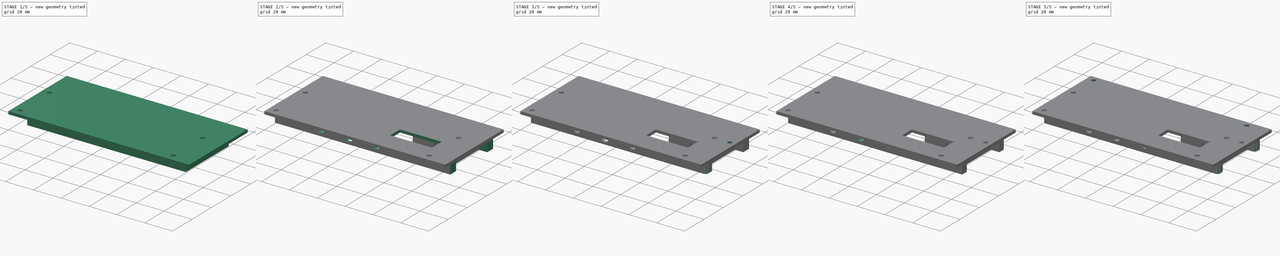
[diagram: build sequence overview — one tinted view per stage of 5, left to right]
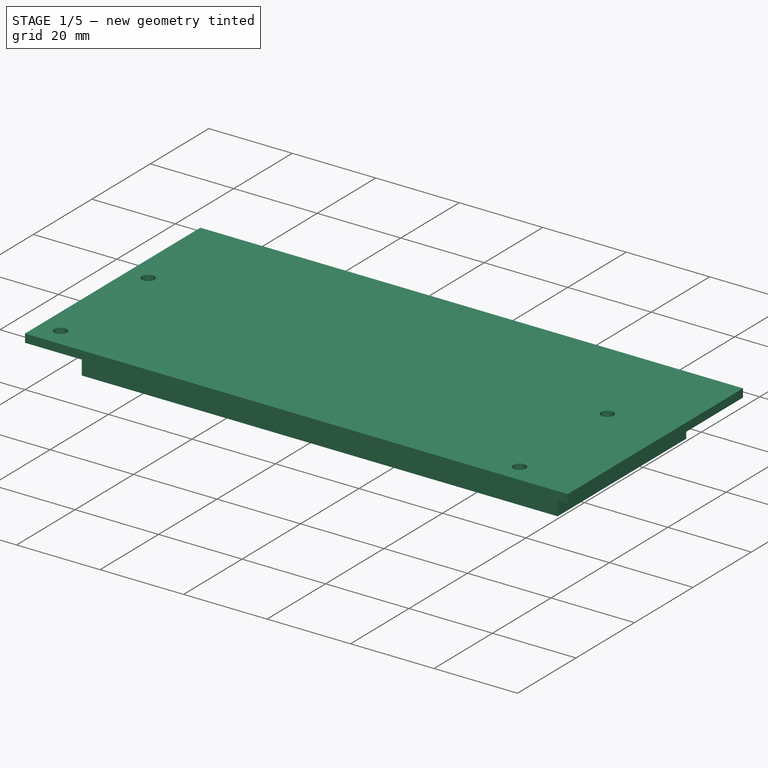
[diagram: stage 1 of 5 — iso view after this stage's code; geometry added in this stage tinted green]
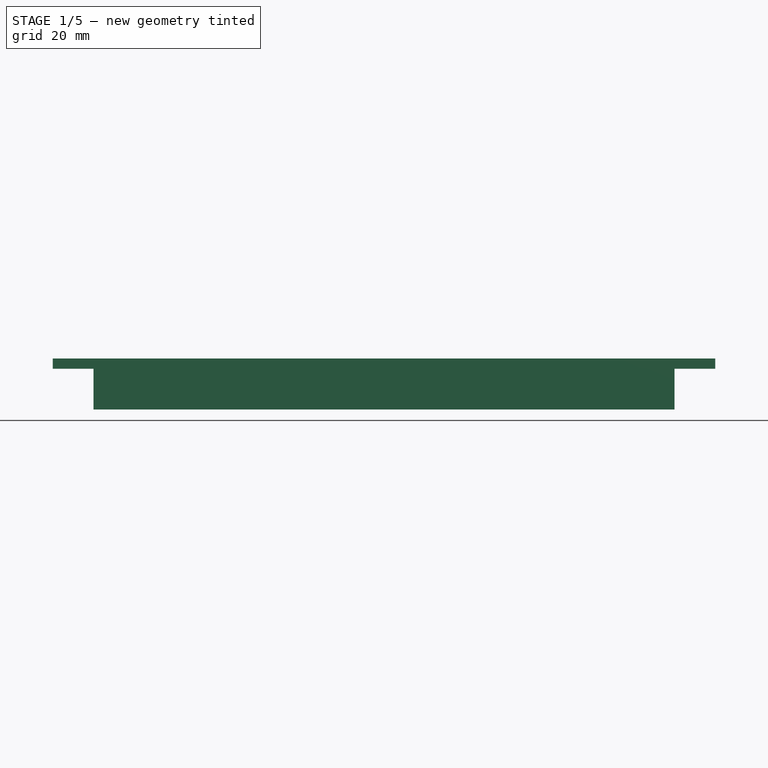
[diagram: stage 1 of 5 — front view after this stage's code; geometry added in this stage tinted green]
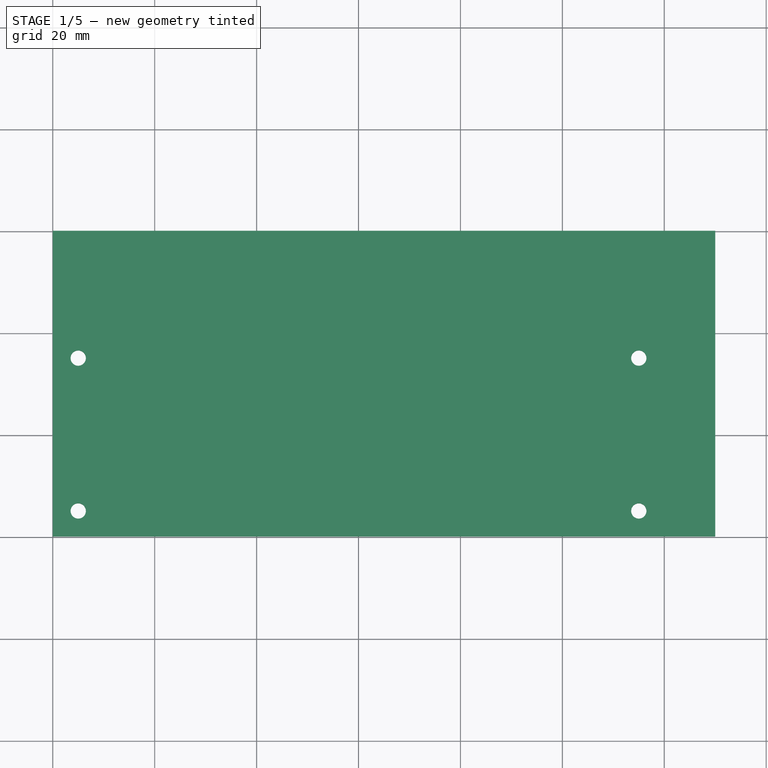
[diagram: stage 1 of 5 — top view after this stage's code; geometry added in this stage tinted green]
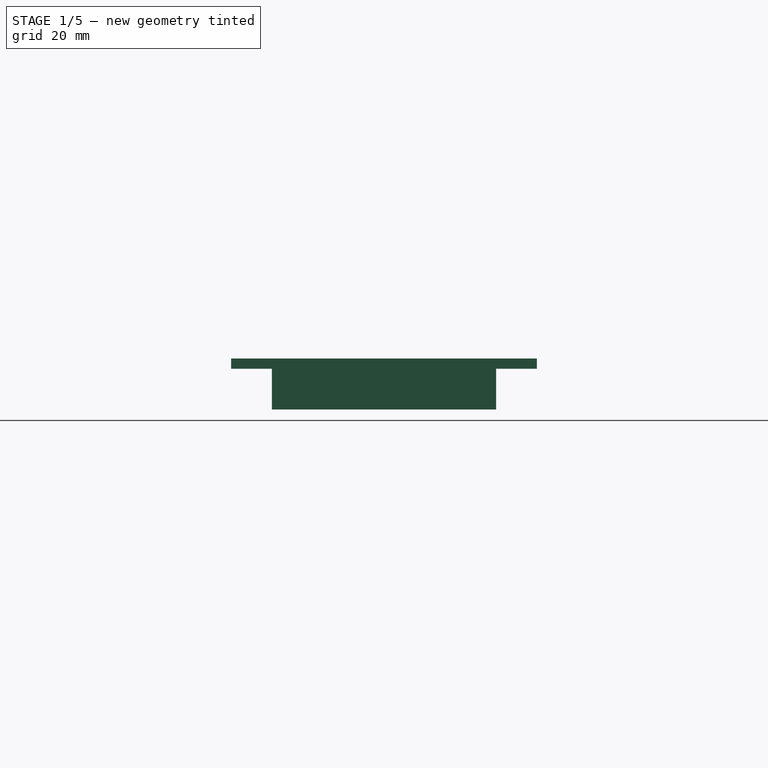
[diagram: stage 1 of 5 — right view after this stage's code; geometry added in this stage tinted green]
FCSTD DOCUMENT  (FreeCAD 0.16R6706 (Git))
Label: iROB-EA_ModuloPrincipal_Lateral_USB
License: All rights reserved
LicenseURL: http://en.wikipedia.org/wiki/All_rights_reserved
objects: Sketcher::SketchObject×10, PartDesign::Fillet×8, PartDesign::Pocket×6, PartDesign::Pad×4
note: 38 computed .brp shape members not serialized (recipe doc carries the construction recipe); baked Part::Feature solids carry a one-line shape summary decoded from their .brp

FEATURE [Sketcher::SketchObject] Sketch  label="Base"
  sketch-geometry (4):
    g0: LineSegment StartX=0 StartY=60 StartZ=0 EndX=130 EndY=60 EndZ=0
    g1: LineSegment StartX=130 StartY=60 StartZ=0 EndX=130 EndY=0 EndZ=0
    g2: LineSegment StartX=130 StartY=0 StartZ=0 EndX=0 EndY=0 EndZ=0
    g3: LineSegment StartX=0 StartY=0 StartZ=0 EndX=0 EndY=60 EndZ=0
  constraints (11):
    c: Coincident(g0,g1)
    c: Coincident(g1,g2)
    c: Coincident(g2,g3)
    c: Coincident(g3,g0)
    c: Horizontal(g0)
    c: Horizontal(g2)
    c: Vertical(g1)
    c: Vertical(g3)
    c: DistanceX(g0,g0) = 130
    c: DistanceY(g3,g3) = 60
    c: Coincident(g2,g-1)
FEATURE [PartDesign::Pad] Pad
  Length = 2
  Length2 = 100
  Sketch = -> Sketch
  Type = 0
FEATURE [Sketcher::SketchObject] Sketch009  label="Recuadro_Ventana"
  Placement = pos=(0,0,0) rot=(1,0,0;3.14159rad)
  Support = -> Pad [Face5]
  sketch-geometry (8):
    g0: LineSegment StartX=10 StartY=-10 StartZ=0 EndX=120 EndY=-10 EndZ=0
    g1: LineSegment StartX=120 StartY=-10 StartZ=0 EndX=120 EndY=-50 EndZ=0
    g2: LineSegment StartX=120 StartY=-50 StartZ=0 EndX=10 EndY=-50 EndZ=0
    g3: LineSegment StartX=10 StartY=-50 StartZ=0 EndX=10 EndY=-10 EndZ=0
    g4: LineSegment StartX=8 StartY=-8 StartZ=0 EndX=122 EndY=-8 EndZ=0
    g5: LineSegment StartX=122 StartY=-8 StartZ=0 EndX=122 EndY=-52 EndZ=0
    g6: LineSegment StartX=122 StartY=-52 StartZ=0 EndX=8 EndY=-52 EndZ=0
    g7: LineSegment StartX=8 StartY=-52 StartZ=0 EndX=8 EndY=-8 EndZ=0
  constraints (24):
    c: Coincident(g0,g1)
    c: Coincident(g1,g2)
    c: Coincident(g2,g3)
    c: Coincident(g3,g0)
    c: Horizontal(g0)
    c: Horizontal(g2)
    c: Vertical(g1)
    c: Vertical(g3)
    c: DistanceX(g0,g0) = 110
    c: DistanceY(g3,g3) = 40
    c: Coincident(g4,g5)
    c: Coincident(g5,g6)
    c: Coincident(g6,g7)
    c: Coincident(g7,g4)
    c: Horizontal(g4)
    c: Horizontal(g6)
    c: Vertical(g5)
    c: Vertical(g7)
    c: DistanceX(g4,g4) = 114
    c: DistanceY(g7,g7) = 44
    c: DistanceY(g6,g2) = 2
    c: DistanceX(g2,g6) = -2
    c: DistanceY(g0,g-1) = 10
    c: DistanceX(g-1,g0) = 10
FEATURE [PartDesign::Pad] Pad001
  Length = 8
  Length2 = 100
  Sketch = -> Sketch009
  Type = 0
FEATURE [Sketcher::SketchObject] Sketch010  label="Tornillos_Sujeccion_1"
  Placement = pos=(0,0,0) rot=(1,0,0;3.14159rad)
  Support = -> Pad001 [Face4]
  sketch-geometry (4):
    g0: Circle CenterX=5 CenterY=-5 CenterZ=0 NormalX=0 NormalY=0 NormalZ=1 Radius=1.5
    g1: Circle CenterX=115 CenterY=-5 CenterZ=0 NormalX=0 NormalY=0 NormalZ=1 Radius=1.5
    g2: Circle CenterX=5 CenterY=-35 CenterZ=0 NormalX=0 NormalY=0 NormalZ=1 Radius=1.5
    g3: Circle CenterX=115 CenterY=-35 CenterZ=0 NormalX=0 NormalY=0 NormalZ=1 Radius=1.5
  constraints (12):
    c: Radius(g0) = 1.5
    c: Radius(g1) = 1.5
    c: DistanceY(g0,g1) = 0
    c: DistanceX(g0,g1) = 110
    c: Radius(g2) = 1.5
    c: Radius(g3) = 1.5
    c: DistanceY(g2,g3) = 0
    c: DistanceX(g2,g3) = 110
    c: DistanceX(g0,g2) = 0
    c: DistanceY(g3,g1) = 30
    c: DistanceY(g0,g-1) = 5
    c: DistanceX(g-1,g0) = 5
FEATURE [PartDesign::Pocket] Pocket
  Length = 5
  Sketch = -> Sketch010
  Type = 0
FEATURE [Sketcher::SketchObject] Sketch011  label="Sujeccion_HUB"
  Placement = pos=(0,0,0) rot=(1,0,0;3.14159rad)
  Support = -> Pocket [Face16]
  sketch-geometry (8):
    g0: LineSegment StartX=85 StartY=-31 StartZ=0 EndX=100 EndY=-31 EndZ=0
    g1: LineSegment StartX=100 StartY=-31 StartZ=0 EndX=100 EndY=-35 EndZ=0
    g2: LineSegment StartX=100 StartY=-35 StartZ=0 EndX=85 EndY=-35 EndZ=0
    g3: LineSegment StartX=85 StartY=-35 StartZ=0 EndX=85 EndY=-31 EndZ=0
    g4: LineSegment StartX=10 StartY=-31 StartZ=0 EndX=15 EndY=-31 EndZ=0
    g5: LineSegment StartX=15 StartY=-31 StartZ=0 EndX=15 EndY=-35 EndZ=0
    g6: LineSegment StartX=15 StartY=-35 StartZ=0 EndX=10 EndY=-35 EndZ=0
    g7: LineSegment StartX=10 StartY=-35 StartZ=0 EndX=10 EndY=-31 EndZ=0
  constraints (24):
    c: Coincident(g0,g1)
    c: Coincident(g1,g2)
    c: Coincident(g2,g3)
    c: Coincident(g3,g0)
    c: Horizontal(g0)
    c: Horizontal(g2)
    c: Vertical(g1)
    c: Vertical(g3)
    c: DistanceX(g0,g0) = 15
    c: DistanceY(g1,g1) = 4
    c: DistanceY(g2,g-1) = 35
    c: Coincident(g4,g5)
    c: Coincident(g5,g6)
    c: Coincident(g6,g7)
    c: Coincident(g7,g4)
    c: Horizontal(g4)
    c: Horizontal(g6)
    c: Vertical(g5)
    c: Vertical(g7)
    c: DistanceY(g5,g5) = 4
    c: DistanceX(g4,g4) = 5
    c: DistanceY(g2,g5) = 0
    c: DistanceX(g-1,g6) = 10
    c: DistanceX(g5,g2) = 70
FEATURE [PartDesign::Pad] Pad002
  Length = 8
  Length2 = 100
  Sketch = -> Sketch011
  Type = 0
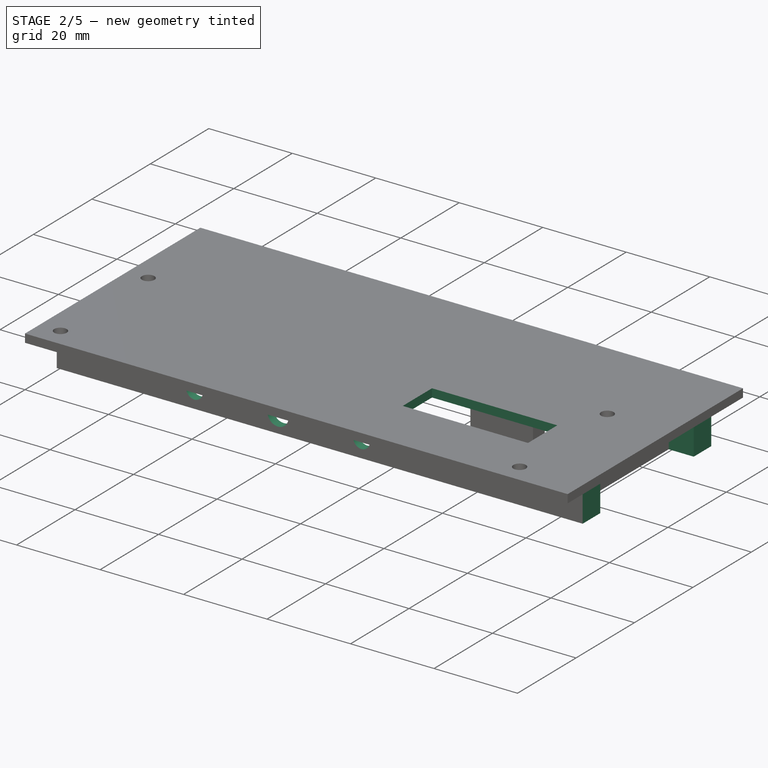
[diagram: stage 2 of 5 — iso view after this stage's code; geometry added in this stage tinted green]
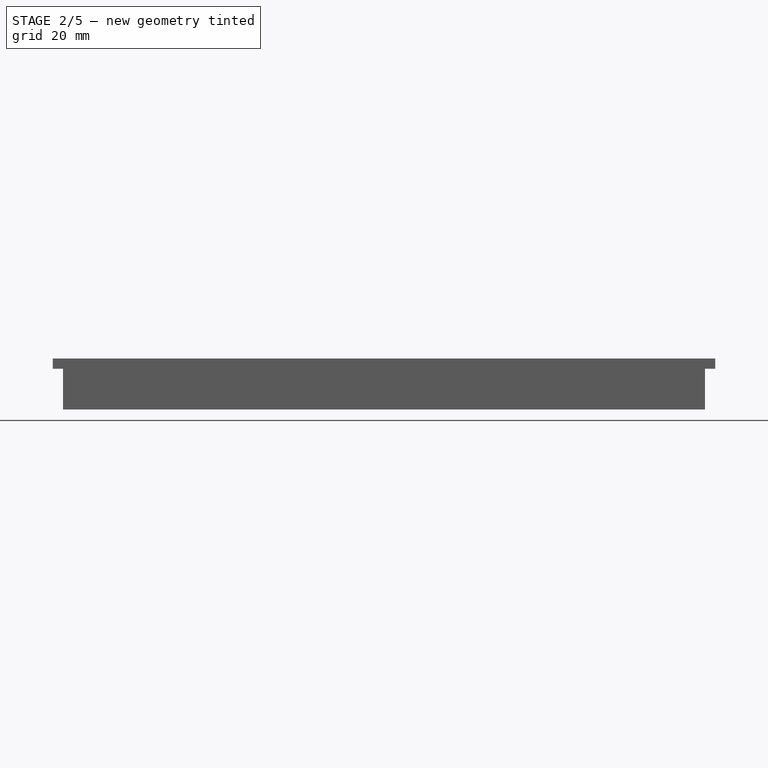
[diagram: stage 2 of 5 — front view after this stage's code; geometry added in this stage tinted green]
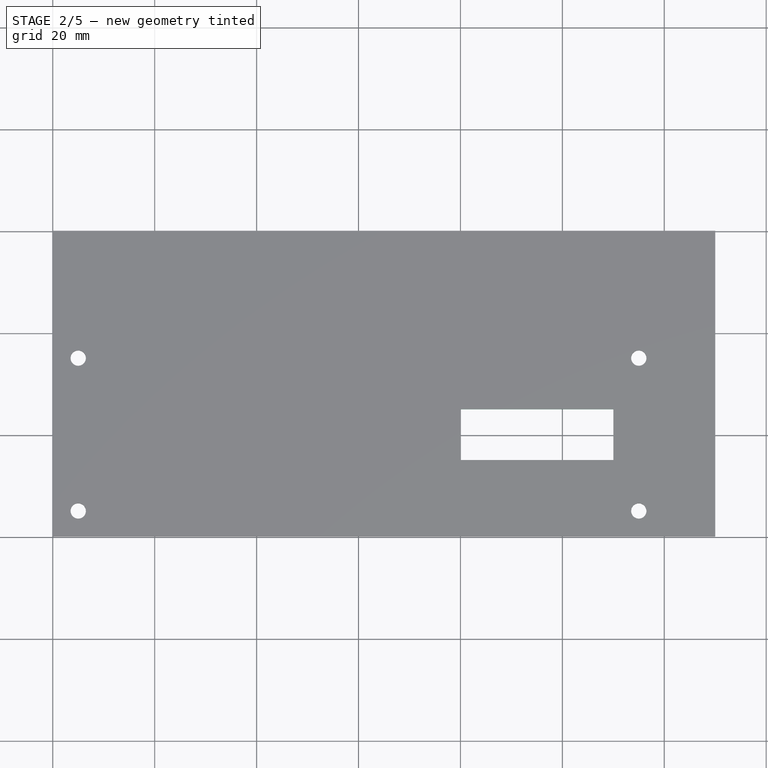
[diagram: stage 2 of 5 — top view after this stage's code; geometry added in this stage tinted green]
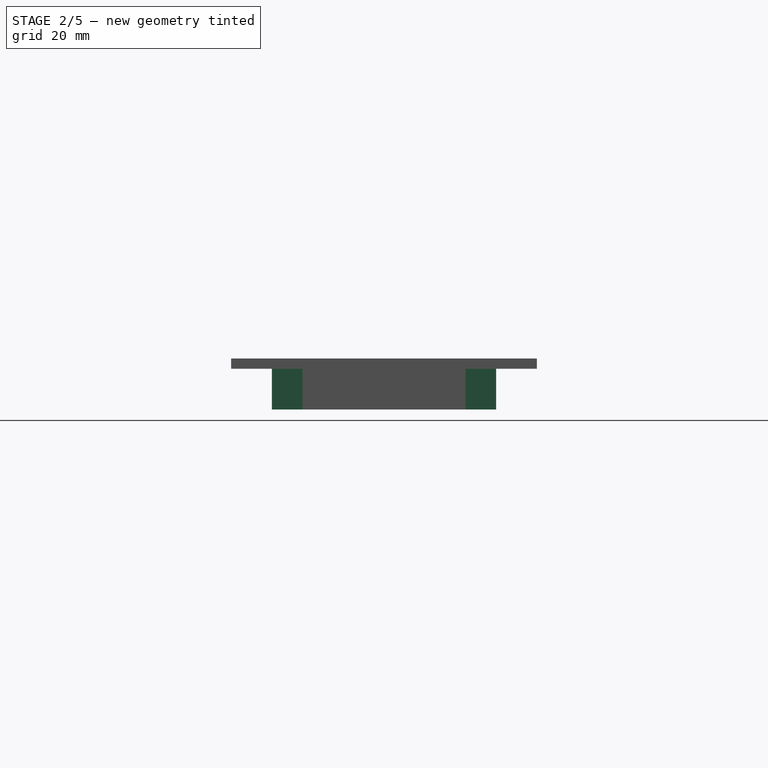
[diagram: stage 2 of 5 — right view after this stage's code; geometry added in this stage tinted green]
FEATURE [Sketcher::SketchObject] Sketch012  label="Entradas_Cable"
  Placement = pos=(0,8,0) rot=(1,0,0;1.5708rad)
  Support = -> Pad002 [Face11]
  sketch-geometry (3):
    g0: Circle CenterX=55 CenterY=-4 CenterZ=0 NormalX=0 NormalY=0 NormalZ=1 Radius=2.5
    g1: Circle CenterX=75 CenterY=-4 CenterZ=0 NormalX=0 NormalY=0 NormalZ=1 Radius=2
    g2: Circle CenterX=35 CenterY=-4 CenterZ=0 NormalX=0 NormalY=0 NormalZ=1 Radius=2
  constraints (9):
    c: Radius(g0) = 2.5
    c: Radius(g1) = 2
    c: Radius(g2) = 2
    c: DistanceY(g0,g2) = 0
    c: DistanceY(g1,g0) = 0
    c: DistanceX(g2,g0) = 20
    c: DistanceX(g0,g1) = 20
    c: DistanceX(g-1,g2) = 35
    c: DistanceY(g-1,g2) = -4
FEATURE [PartDesign::Pocket] Pocket001
  Length = 5
  Sketch = -> Sketch012
  Type = 0
FEATURE [Sketcher::SketchObject] Sketch013  label="Entrada_Robot"
  Placement = pos=(0,0,0) rot=(1,0,0;3.14159rad)
  Support = -> Pocket001 [Face4]
  sketch-geometry (4):
    g0: LineSegment StartX=80 StartY=-15 StartZ=0 EndX=110 EndY=-15 EndZ=0
    g1: LineSegment StartX=110 StartY=-15 StartZ=0 EndX=110 EndY=-25 EndZ=0
    g2: LineSegment StartX=110 StartY=-25 StartZ=0 EndX=80 EndY=-25 EndZ=0
    g3: LineSegment StartX=80 StartY=-25 StartZ=0 EndX=80 EndY=-15 EndZ=0
  constraints (12):
    c: Coincident(g0,g1)
    c: Coincident(g1,g2)
    c: Coincident(g2,g3)
    c: Coincident(g3,g0)
    c: Horizontal(g0)
    c: Horizontal(g2)
    c: Vertical(g1)
    c: Vertical(g3)
    c: DistanceY(g1,g1) = 10
    c: DistanceX(g0,g0) = 30
    c: DistanceX(g-1,g0) = 80
    c: DistanceY(g0,g-1) = 15
FEATURE [PartDesign::Pocket] Pocket002
  Length = 5
  Sketch = -> Sketch013
  Type = 0
FEATURE [Sketcher::SketchObject] Sketch014  label="Tornillos_Tapa_1"
  Placement = pos=(0,0,0) rot=(1,0,0;3.14159rad)
  Support = -> Pocket002 [Face4]
  sketch-geometry (16):
    g0: LineSegment StartX=2 StartY=-8 StartZ=0 EndX=8 EndY=-8 EndZ=0
    g1: LineSegment StartX=8 StartY=-8 StartZ=0 EndX=8 EndY=-14 EndZ=0
    g2: LineSegment StartX=8 StartY=-14 StartZ=0 EndX=2 EndY=-14 EndZ=0
    g3: LineSegment StartX=2 StartY=-14 StartZ=0 EndX=2 EndY=-8 EndZ=0
    g4: LineSegment StartX=122 StartY=-8 StartZ=0 EndX=128 EndY=-8 EndZ=0
    g5: LineSegment StartX=128 StartY=-8 StartZ=0 EndX=128 EndY=-14 EndZ=0
    g6: LineSegment StartX=128 StartY=-14 StartZ=0 EndX=122 EndY=-14 EndZ=0
    g7: LineSegment StartX=122 StartY=-14 StartZ=0 EndX=122 EndY=-8 EndZ=0
    g8: LineSegment StartX=2 StartY=-46 StartZ=0 EndX=8 EndY=-46 EndZ=0
    g9: LineSegment StartX=8 StartY=-46 StartZ=0 EndX=8 EndY=-52 EndZ=0
    g10: LineSegment StartX=8 StartY=-52 StartZ=0 EndX=2 EndY=-52 EndZ=0
    g11: LineSegment StartX=2 StartY=-52 StartZ=0 EndX=2 EndY=-46 EndZ=0
    g12: LineSegment StartX=122 StartY=-46 StartZ=0 EndX=128 EndY=-46 EndZ=0
    g13: LineSegment StartX=128 StartY=-46 StartZ=0 EndX=128 EndY=-52 EndZ=0
    g14: LineSegment StartX=128 StartY=-52 StartZ=0 EndX=122 EndY=-52 EndZ=0
    g15: LineSegment StartX=122 StartY=-52 StartZ=0 EndX=122 EndY=-46 EndZ=0
  constraints (48):
    c: Coincident(g0,g1)
    c: Coincident(g1,g2)
    c: Coincident(g2,g3)
    c: Coincident(g3,g0)
    c: Horizontal(g0)
    c: Horizontal(g2)
    c: Vertical(g1)
    c: Vertical(g3)
    c: DistanceX(g0,g0) = 6
    c: DistanceY(g1,g1) = 6
    c: Coincident(g4,g5)
    c: Coincident(g5,g6)
    c: Coincident(g6,g7)
    c: Coincident(g7,g4)
    c: Horizontal(g4)
    c: Horizontal(g6)
    c: Vertical(g5)
    c: Vertical(g7)
    c: DistanceX(g4,g4) = 6
    c: DistanceY(g7,g7) = 6
    c: DistanceY(g1,g6) = 0
    c: DistanceX(g1,g6) = 114
    c: Coincident(g8,g9)
    c: Coincident(g9,g10)
    c: Coincident(g10,g11)
    c: Coincident(g11,g8)
    c: Horizontal(g8)
    c: Horizontal(g10)
    c: Vertical(g9)
    c: Vertical(g11)
    c: DistanceY(g9,g9) = 6
    c: DistanceX(g8,g8) = 6
    c: DistanceX(g1,g8) = 0
    c: DistanceY(g8,g1) = 32
    c: Coincident(g12,g13)
    c: Coincident(g13,g14)
    c: Coincident(g14,g15)
    c: Coincident(g15,g12)
    c: Horizontal(g12)
    c: Horizontal(g14)
    c: Vertical(g13)
    c: Vertical(g15)
    c: DistanceX(g12,g12) = 6
    c: DistanceY(g13,g13) = 6
    c: DistanceX(g6,g12) = 0
    c: DistanceY(g12,g6) = 32
    c: DistanceX(g-1,g1) = 8
    c: DistanceY(g-1,g0) = -8
FEATURE [PartDesign::Pad] Pad003
  Length = 8
  Length2 = 100
  Sketch = -> Sketch014
  Type = 0
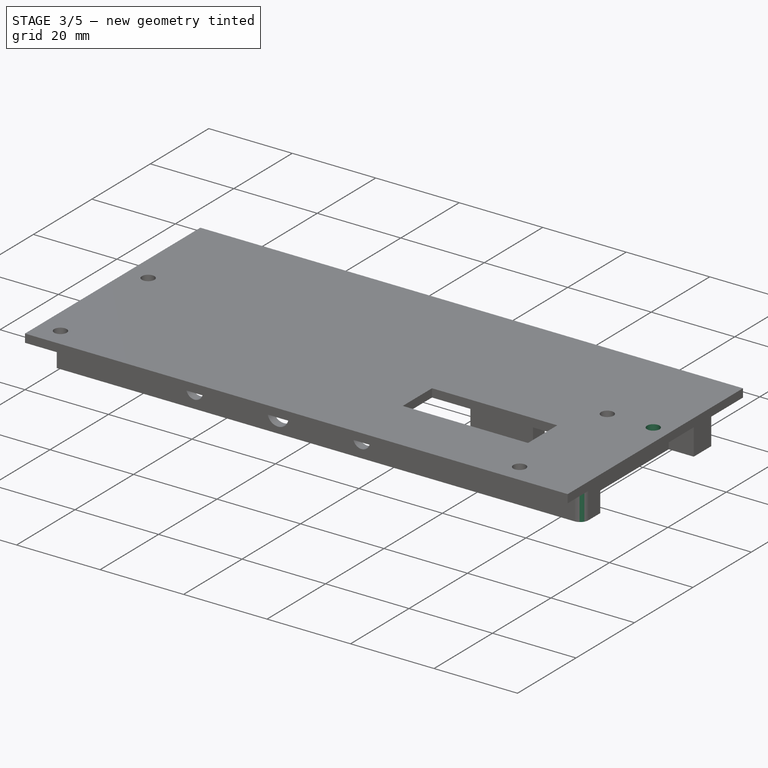
[diagram: stage 3 of 5 — iso view after this stage's code; geometry added in this stage tinted green]
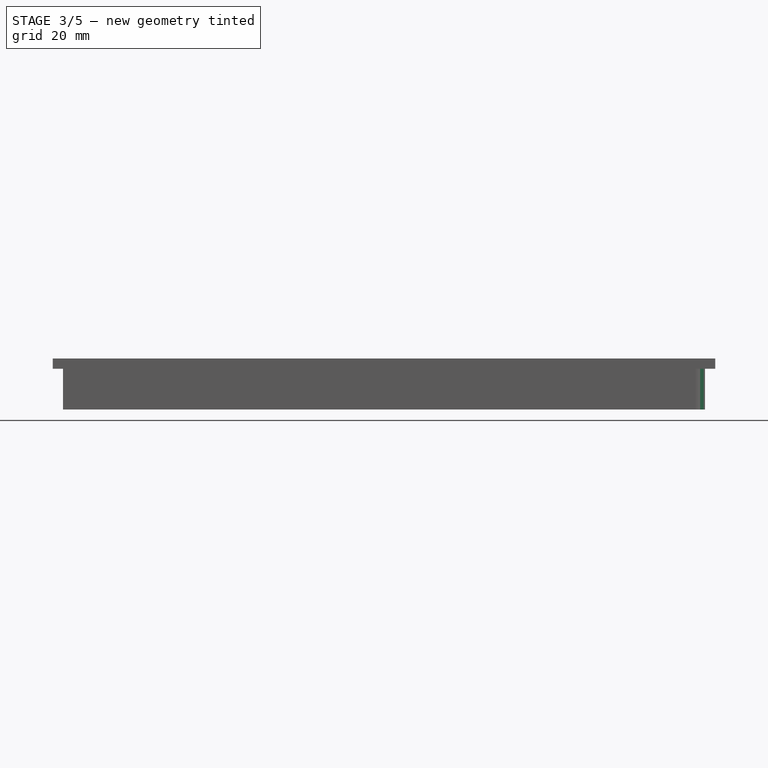
[diagram: stage 3 of 5 — front view after this stage's code; geometry added in this stage tinted green]
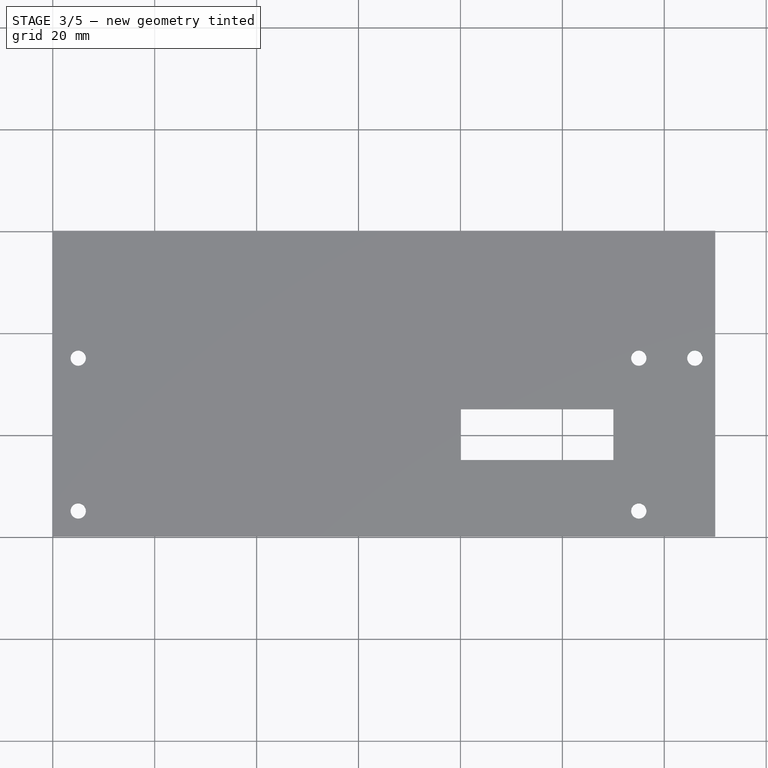
[diagram: stage 3 of 5 — top view after this stage's code; geometry added in this stage tinted green]
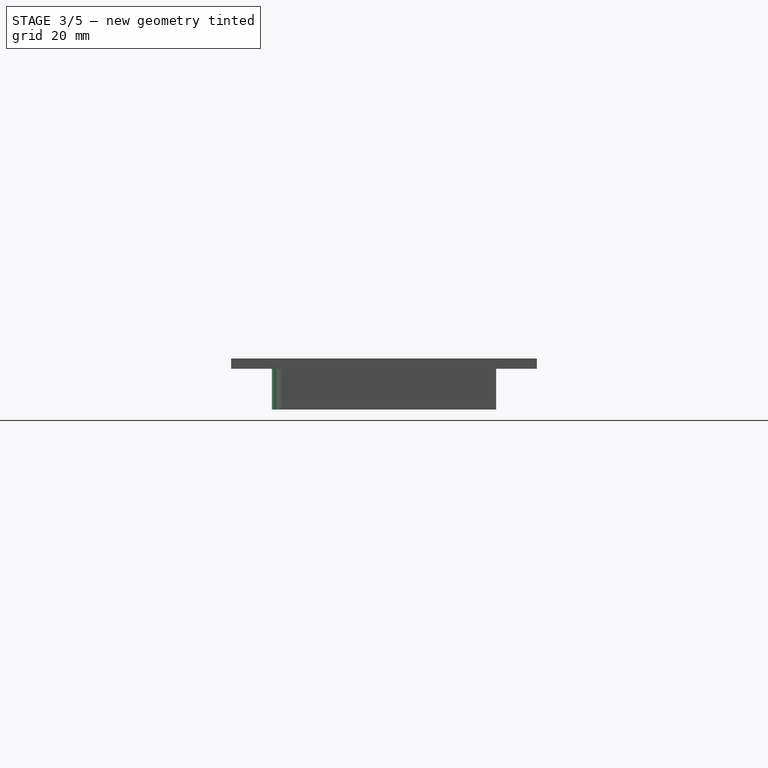
[diagram: stage 3 of 5 — right view after this stage's code; geometry added in this stage tinted green]
FEATURE [Sketcher::SketchObject] Sketch015  label="Tornillos_Sujeccion_2"
  Placement = pos=(0,0,0) rot=(1,0,0;3.14159rad)
  Support = -> Pad003 [Face4]
  sketch-geometry (1):
    g0: Circle CenterX=126 CenterY=-35 CenterZ=0 NormalX=0 NormalY=0 NormalZ=1 Radius=1.5
  constraints (3):
    c: Radius(g0) = 1.5
    c: DistanceX(g-1,g0) = 126
    c: DistanceY(g-1,g0) = -35
FEATURE [PartDesign::Pocket] Pocket003
  Length = 5
  Sketch = -> Sketch015
  Type = 0
FEATURE [PartDesign::Fillet] Fillet
  Base = -> Pocket003 [Edge63]
  Radius = 2
FEATURE [PartDesign::Fillet] Fillet001
  Base = -> Fillet [Edge29]
  Radius = 2
FEATURE [PartDesign::Fillet] Fillet002
  Base = -> Fillet001 [Edge39]
  Radius = 2
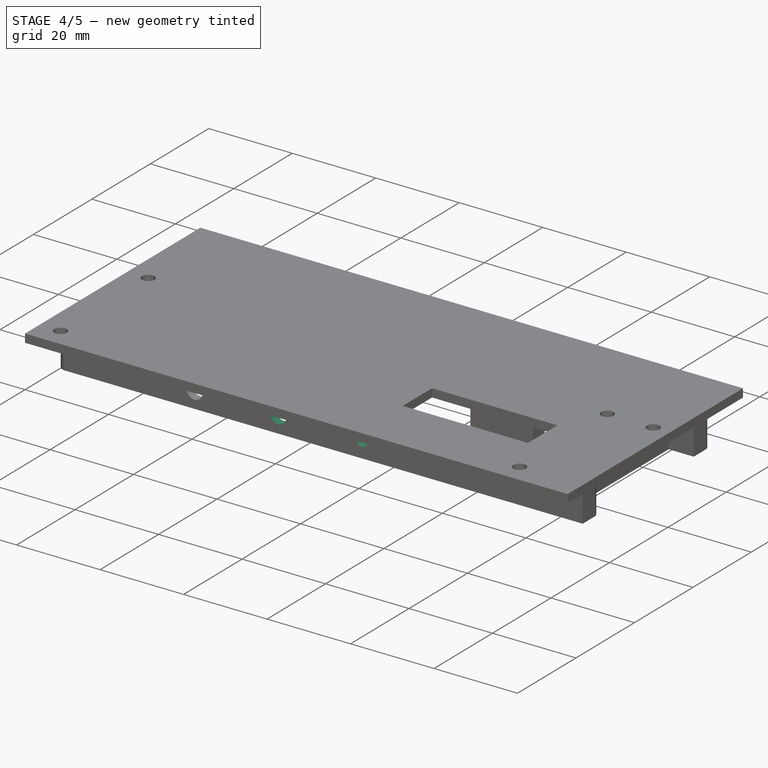
[diagram: stage 4 of 5 — iso view after this stage's code; geometry added in this stage tinted green]
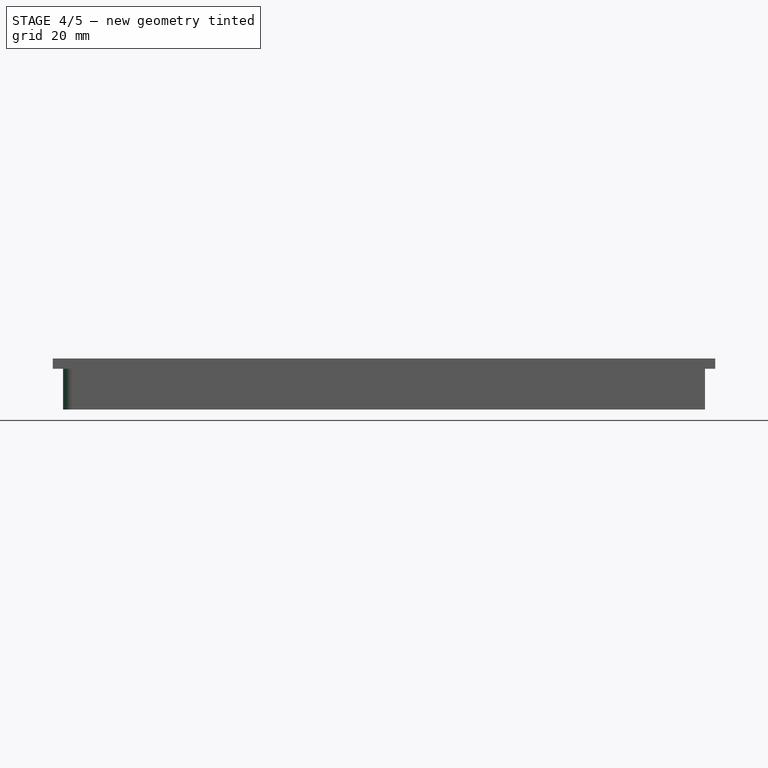
[diagram: stage 4 of 5 — front view after this stage's code; geometry added in this stage tinted green]
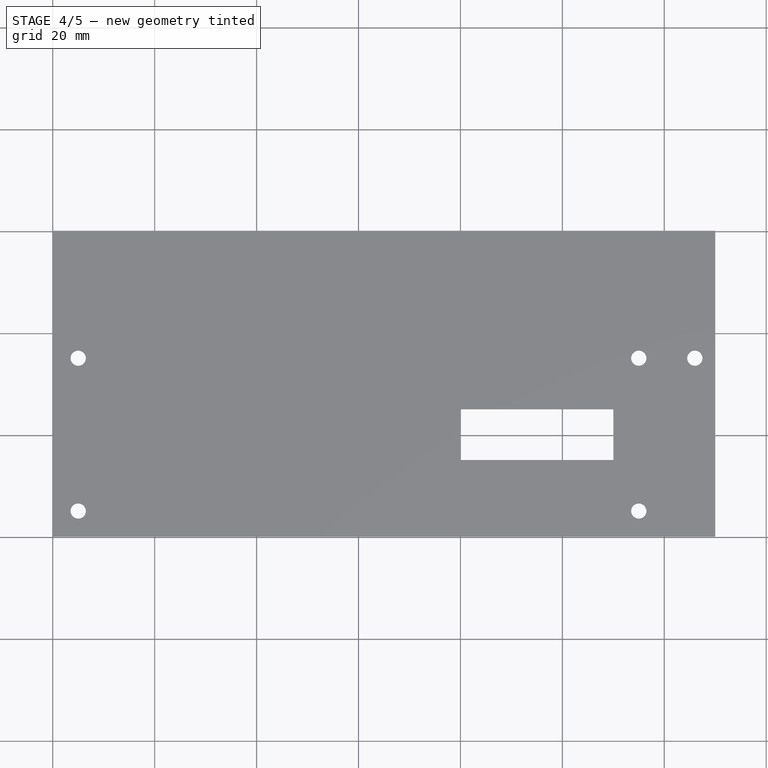
[diagram: stage 4 of 5 — top view after this stage's code; geometry added in this stage tinted green]
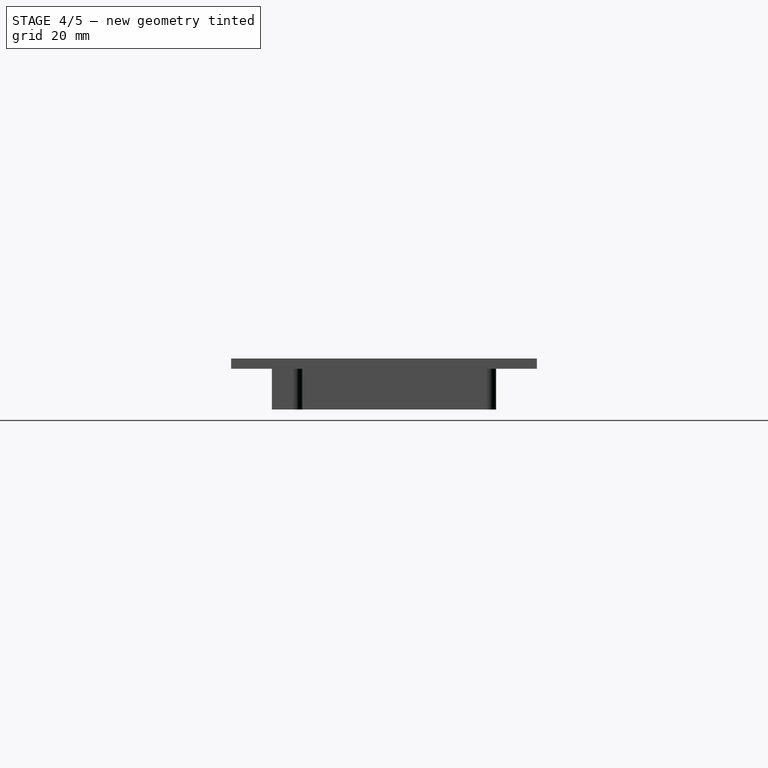
[diagram: stage 4 of 5 — right view after this stage's code; geometry added in this stage tinted green]
FEATURE [PartDesign::Fillet] Fillet003
  Base = -> Fillet002 [Edge31]
  Radius = 2
FEATURE [PartDesign::Fillet] Fillet004
  Base = -> Fillet003 [Edge56]
  Radius = 2
FEATURE [PartDesign::Fillet] Fillet005
  Base = -> Fillet004 [Edge39]
  Radius = 2
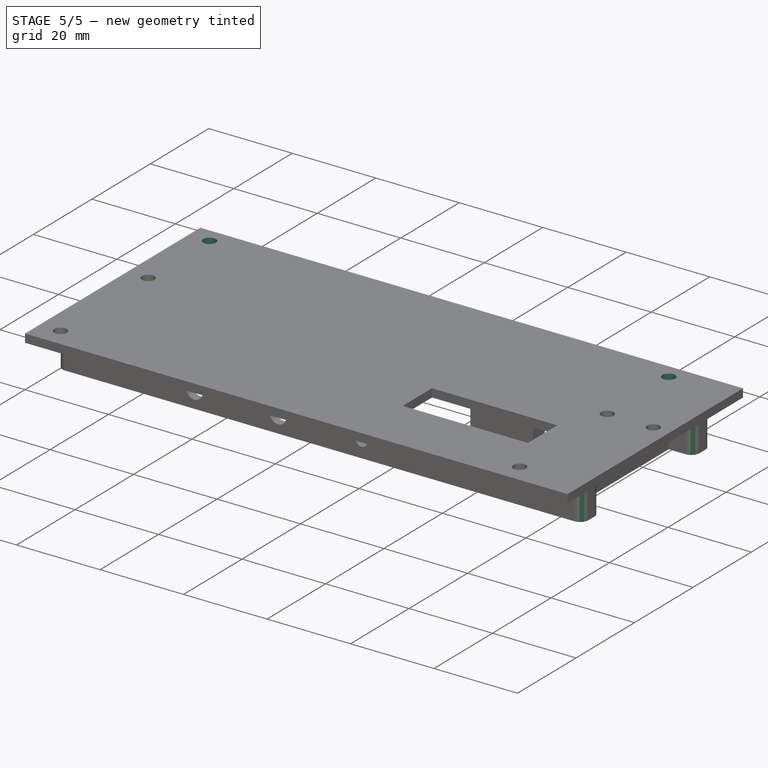
[diagram: stage 5 of 5 — iso view after this stage's code; geometry added in this stage tinted green]
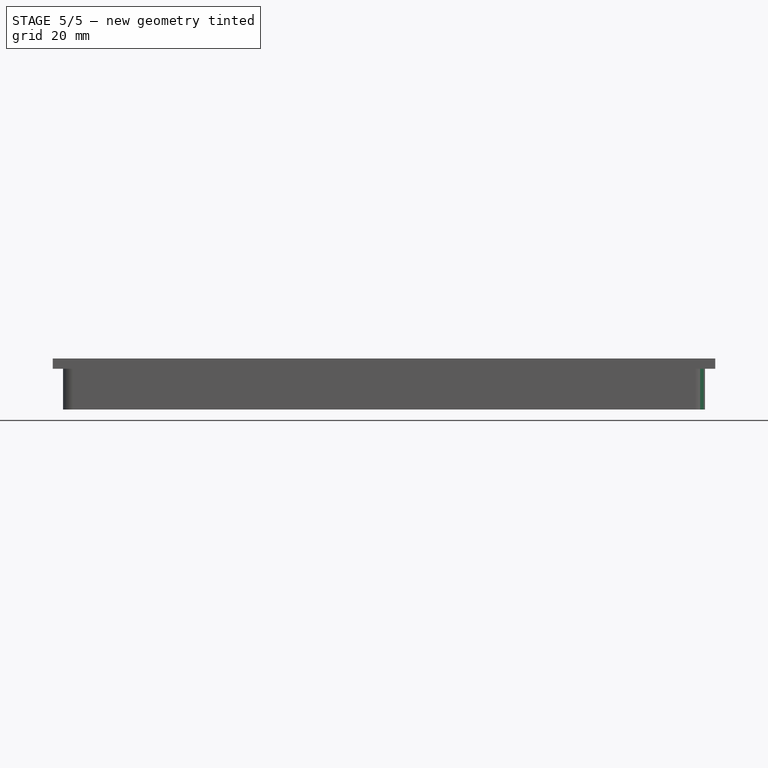
[diagram: stage 5 of 5 — front view after this stage's code; geometry added in this stage tinted green]
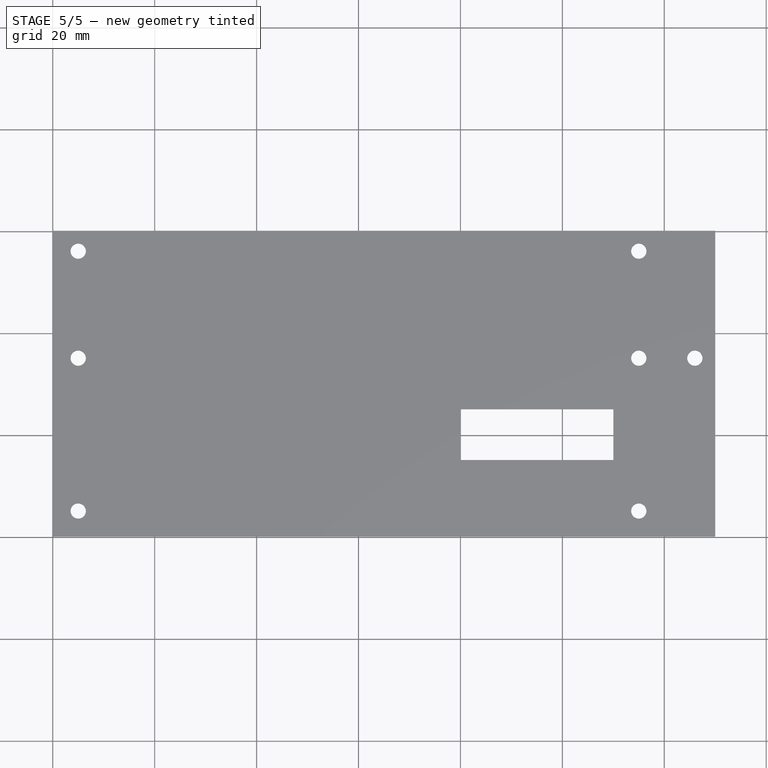
[diagram: stage 5 of 5 — top view after this stage's code; geometry added in this stage tinted green]
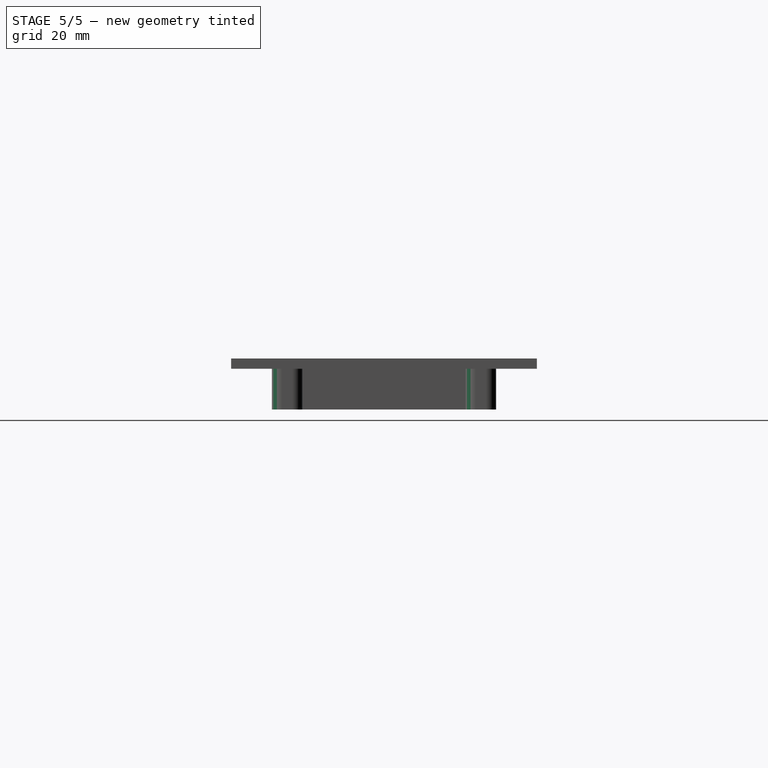
[diagram: stage 5 of 5 — right view after this stage's code; geometry added in this stage tinted green]
FEATURE [PartDesign::Fillet] Fillet006
  Base = -> Fillet005 [Edge37]
  Radius = 2
FEATURE [PartDesign::Fillet] Fillet007
  Base = -> Fillet006 [Edge45]
  Radius = 2
FEATURE [Sketcher::SketchObject] Sketch016  label="Tornillos_Tapa_2"
  Placement = pos=(0,0,-8) rot=(1,0,0;3.14159rad)
  Support = -> Fillet007 [Face30]
  sketch-geometry (4):
    g0: Circle CenterX=5 CenterY=-11 CenterZ=0 NormalX=0 NormalY=0 NormalZ=1 Radius=1
    g1: Circle CenterX=125 CenterY=-11 CenterZ=0 NormalX=0 NormalY=0 NormalZ=1 Radius=1
    g2: Circle CenterX=5 CenterY=-49 CenterZ=0 NormalX=0 NormalY=0 NormalZ=1 Radius=1
    g3: Circle CenterX=125 CenterY=-49 CenterZ=0 NormalX=0 NormalY=0 NormalZ=1 Radius=1
  constraints (12):
    c: Radius(g0) = 1
    c: Radius(g1) = 1
    c: DistanceY(g0,g1) = 0
    c: Radius(g2) = 1
    c: DistanceX(g0,g2) = 0
    c: Radius(g3) = 1
    c: DistanceY(g2,g3) = 0
    c: DistanceX(g1,g3) = 0
    c: DistanceY(g2,g0) = 38
    c: DistanceX(g2,g3) = 120
    c: DistanceY(g0,g-1) = 11
    c: DistanceX(g-1,g0) = 5
FEATURE [PartDesign::Pocket] Pocket004
  Length = 5
  Sketch = -> Sketch016
  Type = 0
FEATURE [Sketcher::SketchObject] Sketch017  label="Tornillos_sujeccion_3"
  Placement = pos=(0,0,0) rot=(1,0,0;3.14159rad)
  Support = -> Pocket004 [Face1]
  sketch-geometry (2):
    g0: Circle CenterX=5 CenterY=-56 CenterZ=0 NormalX=0 NormalY=0 NormalZ=1 Radius=1.5
    g1: Circle CenterX=115 CenterY=-56 CenterZ=0 NormalX=0 NormalY=0 NormalZ=1 Radius=1.5
  constraints (6):
    c: Radius(g0) = 1.5
    c: Radius(g1) = 1.5
    c: DistanceY(g0,g1) = 0
    c: DistanceX(g0,g1) = 110
    c: DistanceX(g-1,g0) = 5
    c: DistanceY(g0,g-1) = 56
FEATURE [PartDesign::Pocket] Pocket005
  Length = 5
  Sketch = -> Sketch017
  Type = 0
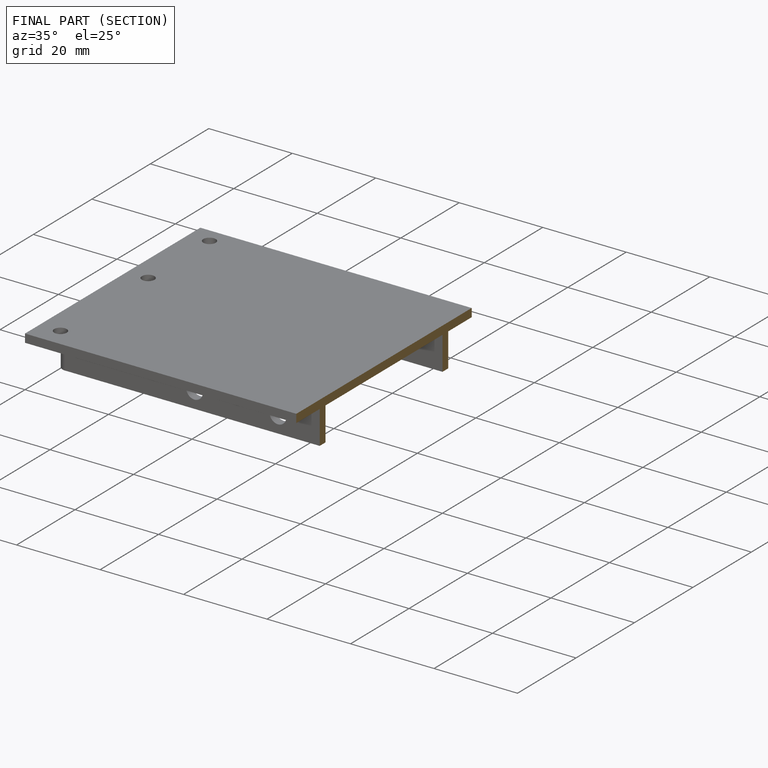
[diagram: finished part — half-section view (interior)]
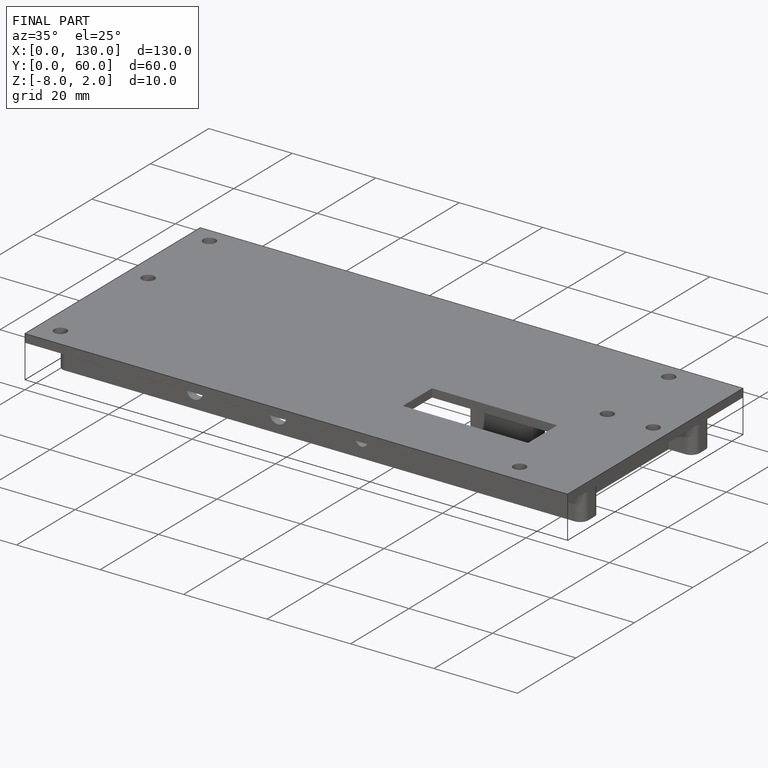
[diagram: finished part — iso view with bounding-box wireframe]
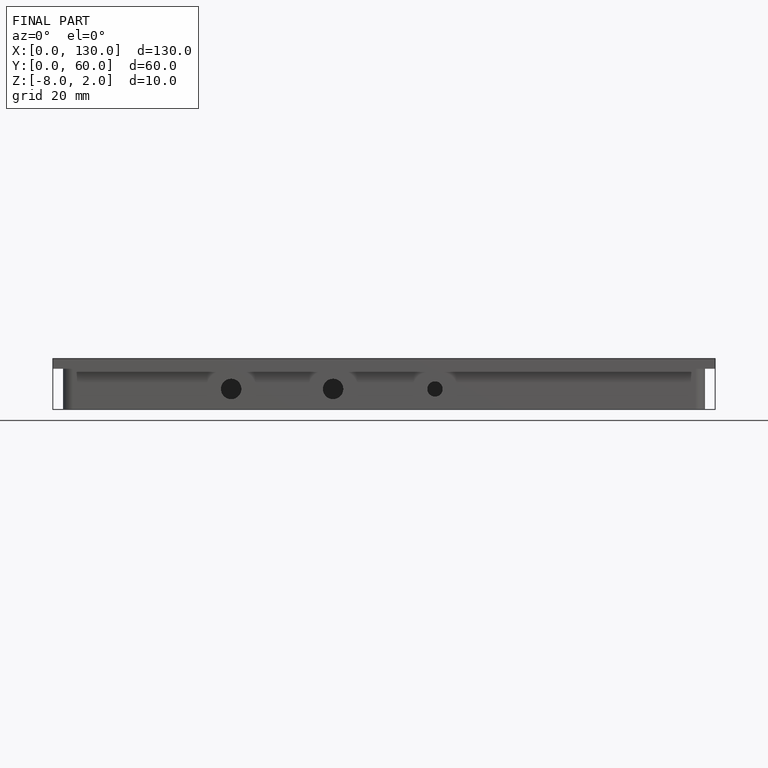
[diagram: finished part — front view with bounding-box wireframe]
